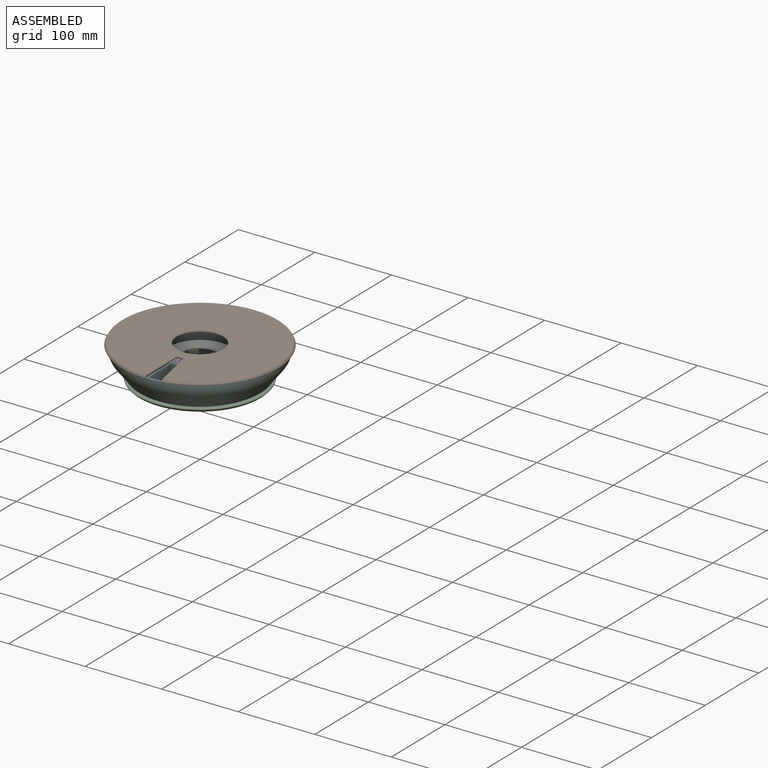
[diagram: assembled view]
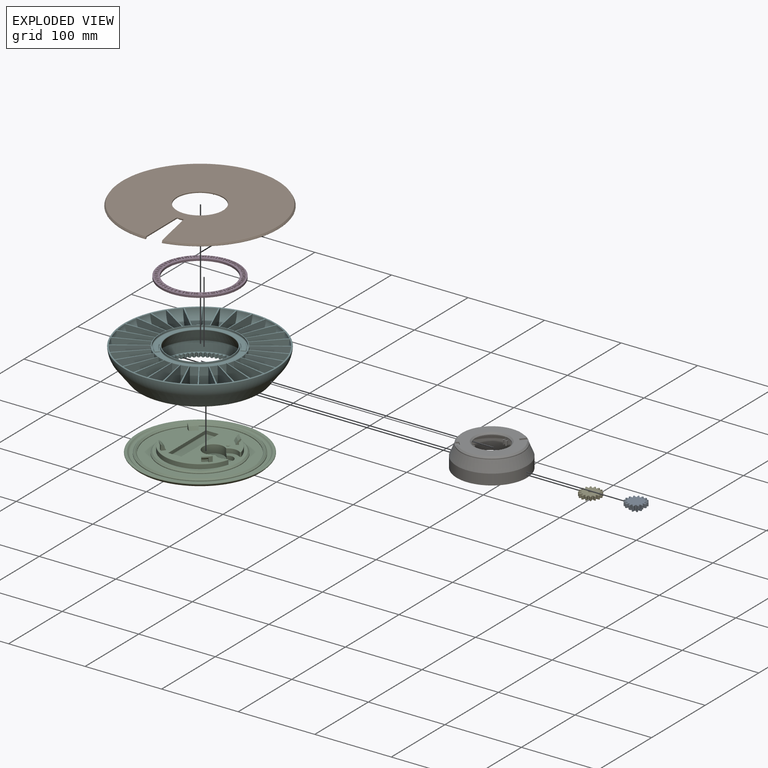
[diagram: exploded view]
GUIDED TOUR — FREECAD ASSEMBLY "smart_medication_box_v3"

This assembly has 7 components, labeled P0..P6 below (a component is one placed body or linked part; the same part can appear more than once), held together by 2 modeled joints plus 9 derived contact edges. A joint is a constraint between two components; its type names the relative motion it leaves free:
  CONTACT — a derived adjacency edge — the two components touch in the source model (clearance under 2% of the assembly's diagonal); it is measured from the geometry, not a modeled constraint,
  REVOLUTE — leaves rotation about the listed axis free (a hinge).
Axis/direction vectors are unit vectors and 'through' points are millimeter coordinates, both in the assembly's world frame.

MATES
  1. REVOLUTE [Revolute] "Joint": P4 <-> P2, axis (0.000, 0.000, 1.000) through (17.75, 0.00, 1.00) mm
  2. REVOLUTE [Revolute] "Joint001": P0 <-> P2, axis (0.000, 0.000, -1.000) through (36.00, 0.00, 1.00) mm
  3. CONTACT "contact_0_4": P0 <-> P4, contact direction (-1.000, 0.000, 0.000) through (27.26, -4.80, 5.98) mm (derived from contact, not a modeled constraint)
  4. CONTACT "contact_0_5": P0 <-> P5, contact direction (-1.000, 0.000, 0.000) through (47.04, 3.34, 10.96) mm (derived from contact, not a modeled constraint)
  5. CONTACT "contact_0_6": P0 <-> P6, contact direction (-0.615, 0.000, 0.789) through (41.70, -4.07, 2.77) mm (derived from contact, not a modeled constraint)
  6. CONTACT "contact_1_3": P1 <-> P3, contact direction (0.000, 0.000, -1.000) through (2.35, -42.67, 43.36) mm (derived from contact, not a modeled constraint)
  7. CONTACT "contact_1_5": P1 <-> P5, contact direction (0.000, 0.000, -1.000) through (-7.81, 39.85, 41.32) mm (derived from contact, not a modeled constraint)
  8. CONTACT "contact_2_5": P2 <-> P5, contact direction (-0.615, 0.000, 0.789) through (-46.35, -8.06, 6.00) mm (derived from contact, not a modeled constraint)
  9. CONTACT "contact_2_6": P2 <-> P6, contact direction (-0.615, 0.000, 0.789) through (30.44, -31.66, 18.80) mm (derived from contact, not a modeled constraint)
  10. CONTACT "contact_3_5": P3 <-> P5, contact direction (0.000, 0.000, -1.000) through (27.28, -32.84, 39.94) mm (derived from contact, not a modeled constraint)
  11. CONTACT "contact_5_6": P5 <-> P6, contact direction (1.000, 0.000, 0.000) through (-45.39, 5.20, 5.56) mm (derived from contact, not a modeled constraint)

ASSEMBLY ORDER
  1. P5 — the base component [order heuristic]
  2. P0 — core [order heuristic]
  3. P3 [order verified]
  4. P6 — core [order heuristic]
  5. P4 — core [order heuristic]
  6. P2 — core [order heuristic]
  7. P1 [order verified]
(P3 verified with a relaxed clearance tolerance: the source model stores slight part interference there.)
Order-tag legend:
  [order verified] — this step's position reverses a verified removal order: the component was checked to insert without passing through the ones already placed.
  [order heuristic] — the first 5 components form the assembly's core: parts whose collision-free extraction could not be verified, listed in mate-graph order.

Of the 7 components, 7 carry a construction recipe — the FreeCAD feature program (sketches with constraints, then the solid features that consume them) that regenerates the part from scratch, quoted from this document or from the linked companion document it references; the rest are supplied as boundary geometry only. The tour below walks the components in assembly order: each is shown spotlighted twice — in the assembled view, then in the exploded view, where a leader line traces a displaced component back to its assembled socket (components that stay in place when exploded have no leader line; saturated green if recipe-attached, orange if geometry-only; every other component desaturated gray) — followed by its recipe or geometry summary and the mates that hold it.
NOTE — document 2 of 2 of this assembly tour. The two overview renders and the header above are repeated from document 1; the component sections below continue where the previous document stopped.
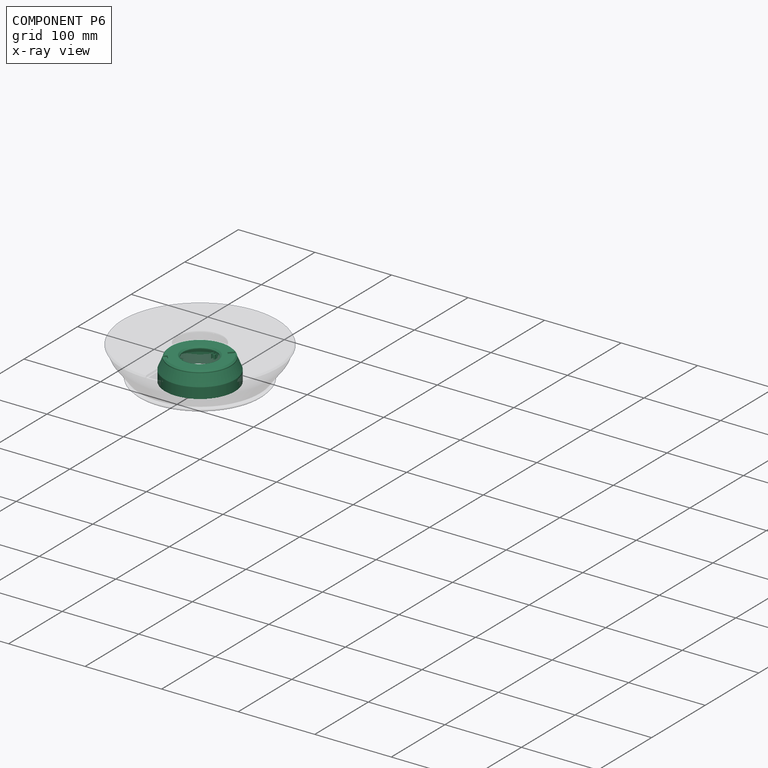
[diagram: component P6 — x-ray view]
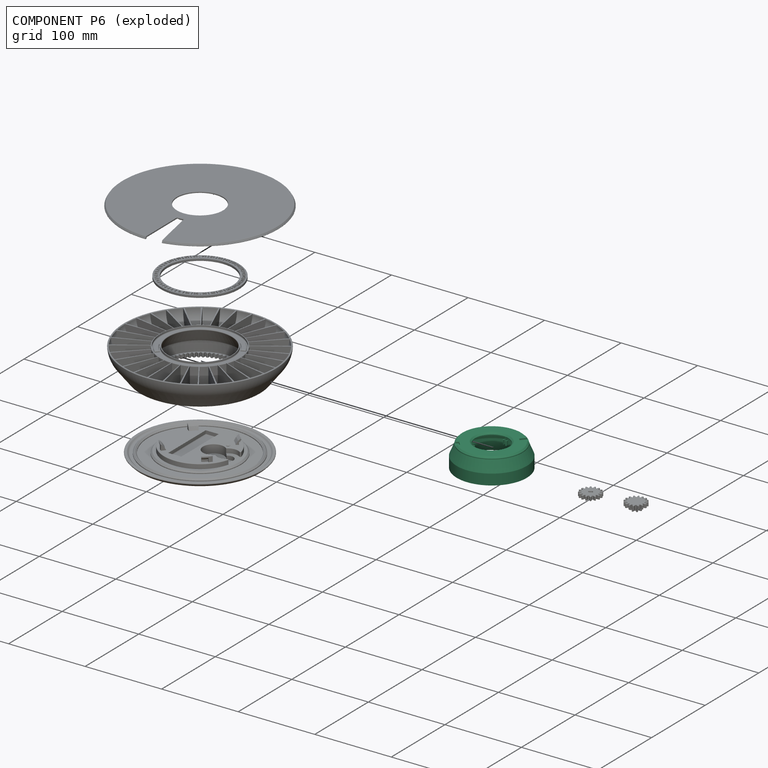
[diagram: component P6 — exploded]
COMPONENT P6 — recipe-attached ("upper_cover_display", modeled in this document).
Held by: resting contact with P0 (derived edge); resting contact with P2 (derived edge); resting contact with P5 (derived edge).
Construction recipe (the document's own serialized feature program — sketch geometry with constraints, then the solid features built on it; lengths are millimeters unless a unit is written):

FEATURE [Sketcher::SketchObject] Sketch012
  ArcFitTolerance = 1e-06
  AttacherType = Attacher::AttachEngine3D
  AttachmentSupport = -> [XY_Plane017]
  FullyConstrained = true
  MakeInternals = false
  MapMode = 5
  expr: Constraints[0] = 43
  expr: Constraints[2] = 80
  sketch-geometry (3):
    g0: Circle CenterX=0 CenterY=0 CenterZ=0 NormalX=0 NormalY=0 NormalZ=1 AngleXU=0 Radius=21.5
    g1: Circle CenterX=0 CenterY=0 CenterZ=0 NormalX=0 NormalY=0 NormalZ=1 AngleXU=0 Radius=40
    g2: Circle CenterX=0 CenterY=0 CenterZ=0 NormalX=0 NormalY=0 NormalZ=1 AngleXU=0 Radius=38.5
  constraints (6):
    c: Diameter(g0) = 43
    c: Coincident(g0,g-1)
    c: Diameter(g1) = 80
    c: Coincident(g1,g0)
    c: Coincident(g2,g0)
    c: Diameter(g2) = 77
FEATURE [PartDesign::Pad] Pad005
  Direction = (0,0,1)
  Length = 3
  Length2 = 10
  Profile = -> Sketch012 [Edge2,Edge1]
  ReferenceAxis = -> Sketch012 [N_Axis]
  Refine = true
  Suppressed = false
  Type = 0
  expr: Length = 3
FEATURE [Sketcher::SketchObject] Sketch017
  ArcFitTolerance = 1e-06
  FullyConstrained = true
  MakeInternals = false
  MapMode = 5
  Placement = pos=(40,0,0) rot=(1,0,0;1.5708rad)
  expr: Constraints[3] = 14
  expr: Constraints[4] = 28
  sketch-geometry (6):
    g0: LineSegment StartX=5.79 StartY=-28 StartZ=0 EndX=5.79 EndY=-14 EndZ=0
    g1: LineSegment StartX=5.79 StartY=-14 StartZ=0 EndX=0 EndY=0 EndZ=0
    g2: LineSegment StartX=0 StartY=0 StartZ=0 EndX=-1.5 EndY=0 EndZ=0
    g3: LineSegment StartX=-1.5 StartY=0 StartZ=0 EndX=4.29 EndY=-14 EndZ=0
    g4: LineSegment StartX=4.29 StartY=-14 StartZ=0 EndX=4.29 EndY=-28 EndZ=0
    g5: LineSegment StartX=4.29 StartY=-28 StartZ=0 EndX=5.79 EndY=-28 EndZ=0
  constraints (17):
    c: Vertical(g0)
    c: Coincident(g1,g0)
    c: Coincident(g1,g-1)
    c: DistanceY(g0,g0) = 14
    c: DistanceY(g0,g1) = 28
    c: Coincident(g2,g1)
    c: PointOnObject(g2,g-1)
    c: Coincident(g2,g3)
    c: Coincident(g3,g4)
    c: Vertical(g4)
    c: Coincident(g4,g5)
    c: Coincident(g5,g0)
    c: Perpendicular(g4,g5)
    c: Equal(g3,g1)
    c: Parallel(g3,g1)
    c: DistanceX(g5,g5) = 1.5
    c: Distance(g-2,g0) = 5.79
FEATURE [PartDesign::Revolution] Revolution003
  Angle = 360
  Angle2 = 60
  Axis = (1e-16,1e-16,1)
  Base = (0,0,0)
  BaseFeature = -> Pad005
  Profile = -> Sketch017
  ReferenceAxis = -> Z_Axis017
  Refine = true
  Reversed = true
  Suppressed = false
  Type = 0
FEATURE [PartDesign::Chamfer] Chamfer
  Angle = 45
  Base = -> Revolution003 [Edge13,Edge10]
  BaseFeature = -> Revolution003
  ChamferType = 0
  FlipDirection = false
  Refine = true
  Size = 2
  Size2 = 1
  SupportTransform = false
  Suppressed = false
  UseAllEdges = false
FEATURE [PartDesign::Plane] DatumPlane
  AttachmentSupport = -> [Chamfer]
  Length = 105.439
  MapMode = 7
  Placement = pos=(44.29,-6.2e-15,-28) rot=(0,0.707107,0.707107;3.14159rad)
  ResizeMode = 0
  Width = 66.9285
FEATURE [Sketcher::SketchObject] Sketch018
  ArcFitTolerance = 1e-06
  AttachmentSupport = -> [DatumPlane]
  FullyConstrained = true
  MakeInternals = false
  MapMode = 5
  Placement = pos=(44.29,-6.2e-15,-28) rot=(0,0.707107,0.707107;3.14159rad)
  sketch-geometry (4):
    g0: LineSegment StartX=0 StartY=0 StartZ=0 EndX=0 EndY=5.12132 EndZ=0
    g1: LineSegment StartX=0 StartY=5.12132 StartZ=0 EndX=2.12132 EndY=3 EndZ=0
    g2: LineSegment StartX=2.12132 StartY=3 StartZ=0 EndX=2.12132 EndY=0 EndZ=0
    g3: LineSegment StartX=2.12132 StartY=0 StartZ=0 EndX=0 EndY=0 EndZ=0
  constraints (11):
    c: Coincident(g-1,g0)
    c: Vertical(g0)
    c: Coincident(g0,g1)
    c: Coincident(g1,g2)
    c: PointOnObject(g2,g-1)
    c: Vertical(g2)
    c: Coincident(g2,g3)
    c: Coincident(g3,g0)
    c: Angle(g2,g1) = 0.785398
    c: Equal(g2,g1)
    c: DistanceY(g2,g2) = 3
FEATURE [PartDesign::Revolution] Revolution004
  Angle = 9
  Angle2 = 60
  Axis = (1e-16,1e-16,1)
  Base = (0,0,0)
  BaseFeature = -> Chamfer
  Profile = -> Sketch018
  ReferenceAxis = -> Z_Axis017
  Refine = true
  Suppressed = false
  Type = 0
  expr: Angle = 9
FEATURE [PartDesign::PolarPattern] PolarPattern003
  Angle = 360
  Axis = -> Z_Axis017
  BaseFeature = -> Revolution004
  Mode = 0
  Occurrences = 4
  Offset = 120
  Originals = -> [Revolution004]
  Refine = true
  Suppressed = false
  TransformMode = 0
FEATURE [PartDesign::Fillet] Fillet014
  Base = -> PolarPattern003 [Face21,Face7,Face23,Face22,Edge66,Edge9,Edge7]
  BaseFeature = -> PolarPattern003
  Radius = 0.5
  Refine = true
  SupportTransform = false
  Suppressed = false
  UseAllEdges = false
  expr: Radius = 0.5
FEATURE [Sketcher::SketchObject] Sketch029
  ArcFitTolerance = 1e-06
  AttachmentSupport = -> [Fillet014]
  ExternalGeometry = -> [Fillet014]
  FullyConstrained = true
  MakeInternals = false
  MapMode = 5
  Placement = pos=(0,0,3) rot=(0,0,1;0rad)
  expr: Constraints[23] = 10
  expr: Constraints[25] = 360 / 32
  expr: Constraints[7] = 360 / 32
  sketch-geometry (9):
    g0: LineSegment [constr] StartX=0 StartY=0 StartZ=0 EndX=63.8908 EndY=-48.1452 EndZ=0
    g1: ArcOfCircle CenterX=1.1e-14 CenterY=0 CenterZ=0 NormalX=0 NormalY=0 NormalZ=1 AngleXU=0 Radius=40 StartAngle=5.53924 EndAngle=5.73559
    g2: ArcOfCircle CenterX=0 CenterY=8.4e-15 CenterZ=0 NormalX=0 NormalY=0 NormalZ=1 AngleXU=0 Radius=30 StartAngle=5.53924 EndAngle=5.73559
    g3: LineSegment StartX=25.6133 StartY=-15.6191 StartZ=0 EndX=34.1511 EndY=-20.8255 EndZ=0
    g4: LineSegment StartX=22.0741 StartY=-20.3159 StartZ=0 EndX=29.4321 EndY=-27.0879 EndZ=0
    g5: ArcOfCircle CenterX=0 CenterY=9.2e-15 CenterZ=0 NormalX=0 NormalY=0 NormalZ=1 AngleXU=0 Radius=40 StartAngle=2.39765 EndAngle=2.594
    g6: ArcOfCircle CenterX=0 CenterY=-1.16e-14 CenterZ=0 NormalX=0 NormalY=0 NormalZ=1 AngleXU=0 Radius=35 StartAngle=2.39765 EndAngle=2.594
    g7: LineSegment StartX=-29.8822 StartY=18.2223 StartZ=0 EndX=-34.1511 EndY=20.8255 EndZ=0
    g8: LineSegment StartX=-25.7531 StartY=23.7019 StartZ=0 EndX=-29.4321 EndY=27.0879 EndZ=0
  constraints (28):
    c: PointOnObject(g0,g-1)
    c: PointOnObject(g0,g-2)
    c: Distance(g0,g0) = 80
    c: Angle(g0,g-1) = 0.645772
    c: Symmetric(g1,g1,g0)
    c: PointOnObject(g1,g-1)
    c: PointOnObject(g1,g-4)
    c: Angle(g1) = 0.19635
    c: Symmetric(g2,g2,g0)
    c: PointOnObject(g2,g-2)
    c: Angle(g2) = 0.19635
    c: Coincident(g3,g2)
    c: Coincident(g3,g1)
    c: Coincident(g4,g2)
    c: Coincident(g4,g1)
    c: Coincident(g7,g6)
    c: Coincident(g7,g5)
    c: Coincident(g8,g6)
    c: Coincident(g8,g5)
    c: Symmetric(g6,g6,g0)
    c: Symmetric(g5,g5,g0)
    c: PointOnObject(g1,g8)
    c: PointOnObject(g5,g-4)
    c: Distance(g3,g3) = 10
    c: Distance(g7,g7) = 5
    c: Angle(g6) = 0.19635
    c: PointOnObject(g6,g-2)
    c: PointOnObject(g5,g-2)
FEATURE [PartDesign::Pocket] Pocket
  BaseFeature = -> Fillet014
  Direction = (0,0,-1)
  Length = 2
  Length2 = 5
  Profile = -> Sketch029
  ReferenceAxis = -> Sketch029 [N_Axis]
  Refine = true
  Suppressed = false
  Type = 0
  expr: Length = 2
FEATURE [PartDesign::Fillet] Fillet017
  Base = -> Pocket [Edge25,Edge46,Edge19,Edge31,Edge48,Edge37]
  BaseFeature = -> Pocket
  Radius = 0.2
  Refine = true
  SupportTransform = false
  Suppressed = false
  UseAllEdges = false
  expr: Radius = 0.2
FEATURE [PartDesign::Plane] DatumPlane001
  AttachmentSupport = -> [Fillet017]
  Length = 105.439
  MapMode = 7
  Placement = pos=(21.5,0,0) rot=(1,0,0;1.5708rad)
  ResizeMode = 0
  Width = 66.9285
FEATURE [Sketcher::SketchObject] Sketch031
  ArcFitTolerance = 1e-06
  AttachmentSupport = -> [DatumPlane001]
  FullyConstrained = true
  MakeInternals = false
  MapMode = 5
  Placement = pos=(21.5,0,0) rot=(1,0,0;1.5708rad)
  expr: Constraints[9] = 2 + 3.5 + 2.5
  sketch-geometry (4):
    g0: LineSegment StartX=6.1188 StartY=0 StartZ=0 EndX=0 EndY=0 EndZ=0
    g1: LineSegment StartX=0 StartY=0 StartZ=0 EndX=0 EndY=-8 EndZ=0
    g2: LineSegment StartX=6.1188 StartY=0 StartZ=0 EndX=1.5 EndY=-8 EndZ=0
    g3: LineSegment StartX=1.5 StartY=-8 StartZ=0 EndX=0 EndY=-8 EndZ=0
  constraints (11):
    c: PointOnObject(g0,g-1)
    c: PointOnObject(g1,g-2)
    c: Coincident(g0,g-1)
    c: Coincident(g1,g0)
    c: Coincident(g0,g2)
    c: Coincident(g2,g3)
    c: Coincident(g3,g1)
    c: Parallel(g3,g0)
    c: Angle(g0,g2) = 1.0472
    c: DistanceY(g1,g1) = 8
    c: DistanceX(g3,g3) = 1.5
FEATURE [PartDesign::Revolution] Revolution008
  Angle = 222.625
  Angle2 = 148.625
  Axis = (1e-16,1e-16,1)
  Base = (0,0,0)
  BaseFeature = -> Fillet017
  Profile = -> Sketch031
  ReferenceAxis = -> Z_Axis017
  Refine = true
  Reversed = true
  Suppressed = false
  Type = 4
  expr: Angle = 180 + 37 + 11.25 / 2
  expr: Angle2 = 180 - (37 - 11.25 / 2)
FEATURE [Sketcher::SketchObject] Sketch033
  ArcFitTolerance = 1e-06
  FullyConstrained = false
  MakeInternals = false
  MapMode = 5
  Placement = pos=(-9e-16,-9e-16,-8) rot=(1,0,0;3.14159rad)
  expr: Constraints[9] = 1.85
  sketch-geometry (6):
    g0: ArcOfCircle CenterX=-15.8928 CenterY=-11.9761 CenterZ=0 NormalX=0 NormalY=0 NormalZ=1 AngleXU=0 Radius=2.75515 StartAngle=1.59748 EndAngle=2.90258
    g1: ArcOfCircle CenterX=-15.8928 CenterY=-11.9761 CenterZ=0 NormalX=0 NormalY=0 NormalZ=1 AngleXU=0 Radius=2.75515 StartAngle=4.67215 EndAngle=6.01294
    g2: ArcOfCircle CenterX=-15.8928 CenterY=-11.9761 CenterZ=0 NormalX=0 NormalY=0 NormalZ=1 AngleXU=0 Radius=1.85 StartAngle=1.59748 EndAngle=6.01294
    g3: ArcOfCircle CenterX=-15.9543 CenterY=-9.67436 CenterZ=0 NormalX=0 NormalY=0 NormalZ=1 AngleXU=0 Radius=0.452574 StartAngle=4.73908 EndAngle=7.88067
    g4: ArcOfCircle CenterX=-13.6738 CenterY=-12.5908 CenterZ=0 NormalX=0 NormalY=0 NormalZ=1 AngleXU=0 Radius=0.452574 StartAngle=6.01294 EndAngle=9.15453
    g5: ArcOfCircle CenterX=-10.7952 CenterY=-8.1348 CenterZ=0 NormalX=0 NormalY=0 NormalZ=1 AngleXU=0 Radius=8.40308 StartAngle=3.53086 EndAngle=4.04387
  constraints (13):
    c: Coincident(g0,g-6)
    c: Coincident(g1,g0)
    c: Coincident(g1,g-5)
    c: Coincident(g2,g0)
    c: Tangent(g3,g2) = 1.5708
    c: Tangent(g3,g0) = -1.5708
    c: Tangent(g4,g1) = -1.5708
    c: Tangent(g4,g2) = 1.5708
    c: Equal(g4,g3)
    c: Radius(g2) = 1.85
    c: Tangent(g2,g-5)
    c: Coincident(g5,g0)
    c: Coincident(g5,g1)
FEATURE [PartDesign::Pad] Pad012
  BaseFeature = -> Revolution008
  Direction = (0,-1e-16,-1)
  Length = 6
  Length2 = 10
  Profile = -> Sketch033
  ReferenceAxis = -> Sketch033 [N_Axis]
  Refine = true
  Reversed = true
  Suppressed = false
  Type = 0
  expr: Length = 2.5 + 3.5
FEATURE [PartDesign::PolarPattern] PolarPattern007
  Angle = 360
  Axis = -> Z_Axis017
  BaseFeature = -> Pad012
  Mode = 1
  Occurrences = 2
  Offset = 144
  Originals = -> [Revolution008]
  Refine = true
  Suppressed = false
  TransformMode = 0
  expr: Offset = 144
FEATURE [PartDesign::PolarPattern] PolarPattern008
  Angle = 360
  Axis = -> Z_Axis017
  BaseFeature = -> PolarPattern007
  Mode = 1
  Occurrences = 2
  Offset = 216
  Originals = -> [Revolution008]
  Refine = true
  Suppressed = false
  TransformMode = 0
  expr: Offset = 180 + 36
FEATURE [PartDesign::PolarPattern] PolarPattern009
  Angle = 360
  Axis = -> Z_Axis017
  BaseFeature = -> PolarPattern008
  Mode = 1
  Occurrences = 2
  Offset = 144
  Originals = -> [Pad012]
  Refine = true
  Suppressed = false
  TransformMode = 0
  expr: Offset = 144
FEATURE [PartDesign::PolarPattern] PolarPattern010
  Angle = 216
  Axis = -> Z_Axis017
  BaseFeature = -> PolarPattern009
  Mode = 1
  Occurrences = 2
  Offset = 216
  Originals = -> [Pad012]
  Refine = true
  Suppressed = false
  TransformMode = 0
  expr: Angle = 216
  expr: Offset = 216
FEATURE [PartDesign::Body] Body021  label="upper_cover_display"
  AllowCompound = false
  Group = -> [Sketch012,Pad005,Sketch017,Revolution003,Chamfer,Sketch018,Revolution004,PolarPattern003,DatumPlane,Fillet014,Sketch029,Pocket,Fillet017,DatumPlane001,Sketch031,Revolution008,Sketch033,Pad012,PolarPattern007,PolarPattern008,PolarPattern009,PolarPattern010]
  Origin = -> Origin034
  Tip = -> PolarPattern010
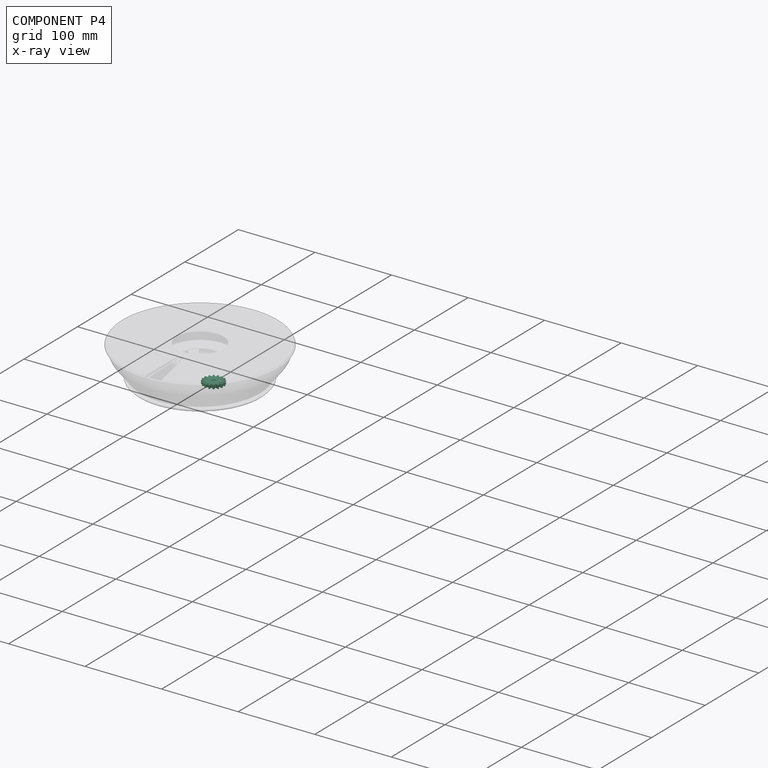
[diagram: component P4 — x-ray view]
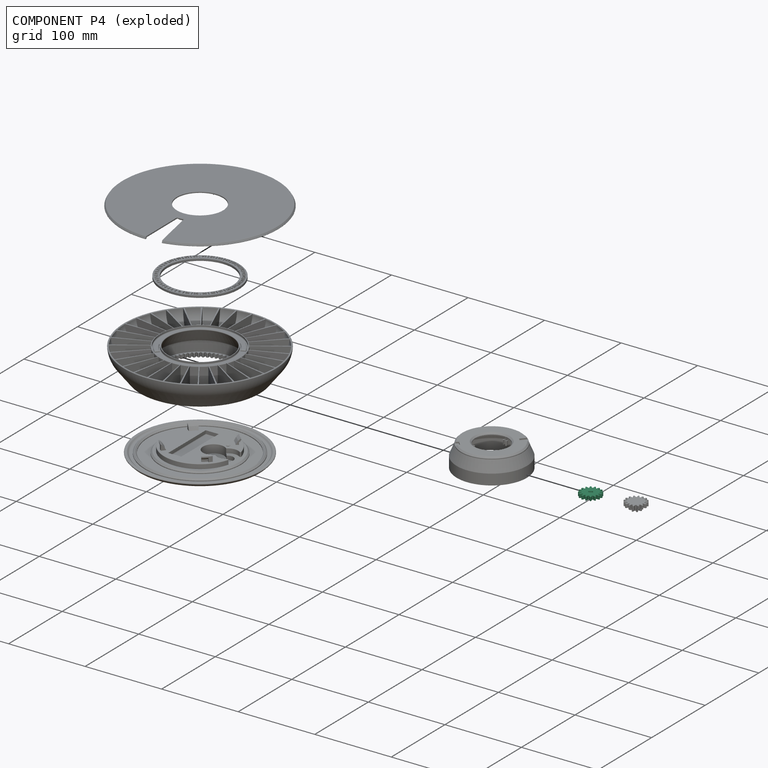
[diagram: component P4 — exploded]
COMPONENT P4 — recipe-attached ("motor_gear002", modeled in this document).
Held by: REVOLUTE mate "Joint" to P2; resting contact with P0 (derived edge).
Construction recipe (the document's own serialized feature program — sketch geometry with constraints, then the solid features built on it; lengths are millimeters unless a unit is written):

FEATURE [PartDesign::FeaturePython] InvoluteGear001  # WARN: FeaturePython — macro-defined, semantics opaque (R4)
  AttacherType = Attacher::AttachEngine3D
  Suppressed = false
  addendum_diameter = 27
  angular_backlash = 0
  axle_hole = false
  axle_holesize = 10
  backlash = 0
  clearance = 0.25
  double_helix = false
  head = 0
  head_fillet = 0
  height = 5
  helix_angle = 0
  module = 1.5
  num_teeth = 16
  numpoints = 20
  offset_hole = false
  offset_holeoffset = 10
  offset_holesize = 10
  pitch_diameter = 24
  pressure_angle = 20
  properties_from_tool = false
  reversed_backlash = false
  root_diameter = 20.25
  root_fillet = 0
  shift = 0
  simple = false
  transverse_pitch = 4.71239
  traverse_module = 1.5
  undercut = false
  version = 1.3.0
  expr: angular_backlash = backlash / pitch_diameter * 360 ° / pi
  expr: module = 1.5
  expr: num_teeth = 16
FEATURE [Sketcher::SketchObject] Sketch008
  ArcFitTolerance = 1e-06
  AttachmentSupport = -> [InvoluteGear001]
  FullyConstrained = true
  MakeInternals = false
  MapMode = 5
  Placement = pos=(0,0,5) rot=(0,0,1;0rad)
  expr: Constraints[11] = 3.1
  sketch-geometry (4):
    g0: ArcOfCircle CenterX=0 CenterY=0 CenterZ=0 NormalX=0 NormalY=0 NormalZ=1 AngleXU=0 Radius=2.5 StartAngle=2.47285 EndAngle=3.81034
    g1: ArcOfCircle CenterX=0 CenterY=0 CenterZ=0 NormalX=0 NormalY=0 NormalZ=1 AngleXU=0 Radius=2.5 StartAngle=5.61444 EndAngle=6.95193
    g2: LineSegment StartX=-1.9615 StartY=1.55 StartZ=0 EndX=1.9615 EndY=1.55 EndZ=0
    g3: LineSegment StartX=1.9615 StartY=-1.55 StartZ=0 EndX=-1.9615 EndY=-1.55 EndZ=0
  constraints (12):
    c: Coincident(g0,g-1)
    c: Coincident(g0,g1)
    c: Diameter(g0) = 5
    c: Equal(g1,g0)
    c: Coincident(g2,g0)
    c: Coincident(g2,g1)
    c: Coincident(g3,g1)
    c: Coincident(g3,g0)
    c: Parallel(g3,g2)
    c: Parallel(g-1,g2)
    c: Equal(g2,g3)
    c: Distance(g3,g2) = 3.1
FEATURE [PartDesign::Pocket] Pocket004
  BaseFeature = -> InvoluteGear001
  Direction = (0,0,-1)
  Length = 5
  Length2 = 5
  Profile = -> Sketch008
  ReferenceAxis = -> Sketch008 [N_Axis]
  Refine = true
  Suppressed = false
  Type = 0
FEATURE [PartDesign::Fillet] Fillet012
  Base = -> Pocket004 [Face5,Face4]
  BaseFeature = -> Pocket004
  Radius = 0.25
  Refine = true
  SupportTransform = false
  Suppressed = false
  UseAllEdges = false
  expr: Radius = 0.25
FEATURE [PartDesign::Body] Body005  label="motor_gear001"
  AllowCompound = false
  Group = -> [InvoluteGear001,Sketch008,Pocket004,Fillet012]
  Origin = -> Origin010
  Placement = pos=(0,0,75) rot=(0,0,1;0rad)
  Tip = -> Fillet012
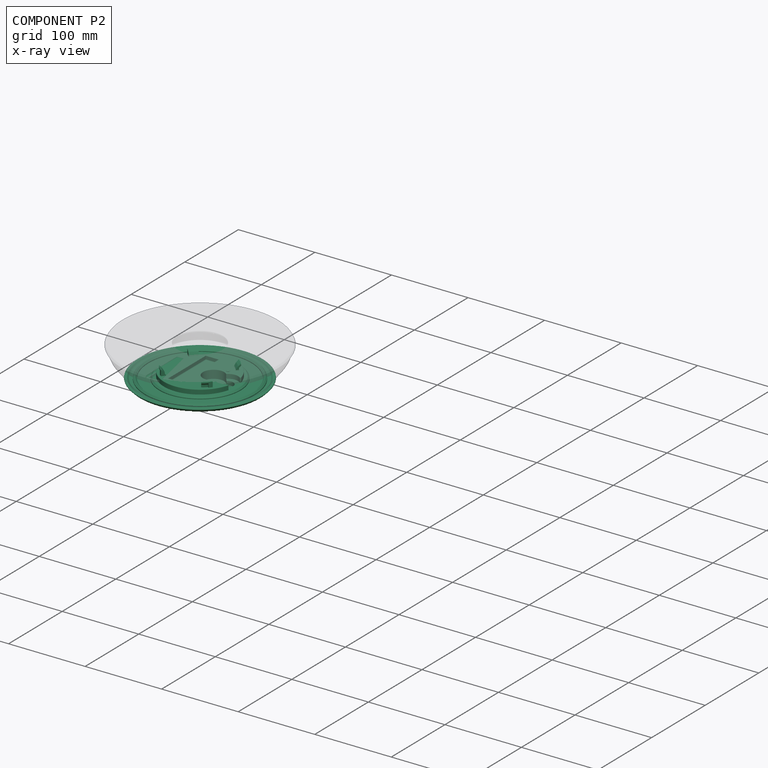
[diagram: component P2 — x-ray view]
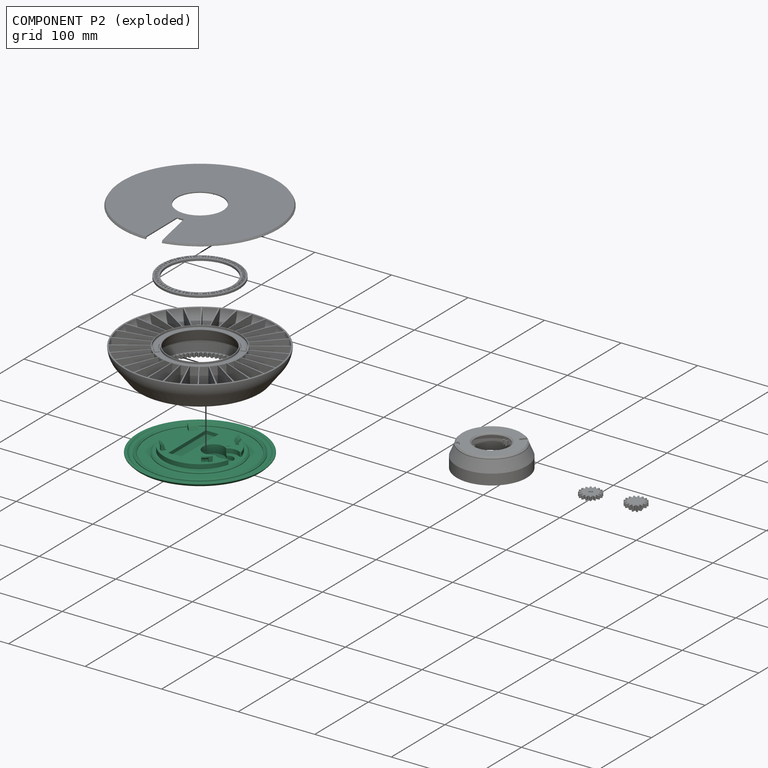
[diagram: component P2 — exploded]
COMPONENT P2 — recipe-attached ("base002", modeled in this document).
Held by: REVOLUTE mate "Joint" to P4; REVOLUTE mate "Joint001" to P0; resting contact with P5 (derived edge); resting contact with P6 (derived edge).
Construction recipe (the document's own serialized feature program — sketch geometry with constraints, then the solid features built on it; lengths are millimeters unless a unit is written):

FEATURE [Sketcher::SketchObject] Sketch003
  ArcFitTolerance = 1e-06
  AttachmentSupport = -> [Origin006]
  FullyConstrained = true
  MakeInternals = false
  expr: Constraints[0] = 53 * 2
  sketch-geometry (1):
    g0: Circle CenterX=0 CenterY=0 CenterZ=0 NormalX=0 NormalY=0 NormalZ=1 AngleXU=0 Radius=53
  constraints (2):
    c: Diameter(g0) = 106
    c: Coincident(g0,g-1)
FEATURE [PartDesign::Pad] Pad
  Direction = (0,0,1)
  Length = 6
  Length2 = 10
  Profile = -> Sketch003
  ReferenceAxis = -> Sketch003 [N_Axis]
  Refine = true
  Suppressed = false
  Type = 0
  expr: Length = 6
FEATURE [Sketcher::SketchObject] Sketch004
  ArcFitTolerance = 1e-06
  AttachmentSupport = -> [Pad]
  FullyConstrained = true
  MakeInternals = false
  MapMode = 5
  Placement = pos=(0,0,6) rot=(0,0,1;0rad)
  expr: Constraints[0] = 48 * 2 - 2
  sketch-geometry (1):
    g0: Circle CenterX=0 CenterY=0 CenterZ=0 NormalX=0 NormalY=0 NormalZ=1 AngleXU=0 Radius=47
  constraints (2):
    c: Diameter(g0) = 94
    c: Coincident(g0,g-1)
FEATURE [PartDesign::Pad] Pad001
  BaseFeature = -> Pad
  Direction = (0,0,1)
  Length = 6
  Length2 = 10
  Profile = -> Sketch004
  ReferenceAxis = -> Sketch004 [N_Axis]
  Refine = true
  Suppressed = false
  Type = 0
  expr: Length = 6
FEATURE [Sketcher::SketchObject] Sketch005
  ArcFitTolerance = 1e-06
  AttachmentSupport = -> [Pad001]
  ExternalGeometry = -> [Pad001]
  FullyConstrained = true
  MakeInternals = false
  MapMode = 5
  Placement = pos=(0,0,12) rot=(0,0,1;0rad)
  expr: Constraints[0] = 27.5
  expr: Constraints[4] = 11
  sketch-geometry (2):
    g0: Circle CenterX=36 CenterY=0 CenterZ=0 NormalX=0 NormalY=0 NormalZ=1 AngleXU=0 Radius=13.75
    g1: Circle [constr] CenterX=36 CenterY=0 CenterZ=0 NormalX=0 NormalY=0 NormalZ=1 AngleXU=0 Radius=11
  constraints (5):
    c: Diameter(g0) = 27.5
    c: Coincident(g1,g0)
    c: Tangent(g1,g-3)
    c: PointOnObject(g0,g-1)
    c: Distance(g0,g-3) = 11
FEATURE [PartDesign::Pocket] Pocket001
  BaseFeature = -> Pad001
  Direction = (0,0,-1)
  Length = 6
  Length2 = 5
  Profile = -> Sketch005
  ReferenceAxis = -> Sketch005 [N_Axis]
  Refine = true
  Suppressed = false
  Type = 0
  expr: Length = 6
FEATURE [Sketcher::SketchObject] Sketch006
  ArcFitTolerance = 1e-06
  AttachmentSupport = -> [Pocket001]
  ExternalGeometry = -> [Pocket001]
  FullyConstrained = true
  MakeInternals = false
  MapMode = 5
  Placement = pos=(0,0,6) rot=(0,0,1;0rad)
  sketch-geometry (1):
    g0: Circle CenterX=36 CenterY=0 CenterZ=0 NormalX=0 NormalY=0 NormalZ=1 AngleXU=0 Radius=7.6
  constraints (2):
    c: Diameter(g0) = 15.2
    c: Coincident(g0,g-4)
FEATURE [PartDesign::Pocket] Pocket002
  BaseFeature = -> Pocket001
  Direction = (0,0,-1)
  Length = 5
  Length2 = 5
  Profile = -> Sketch006
  ReferenceAxis = -> Sketch006 [N_Axis]
  Refine = true
  Suppressed = false
  Type = 0
FEATURE [Sketcher::SketchObject] Sketch007
  ArcFitTolerance = 1e-06
  AttachmentSupport = -> [Pocket002]
  ExternalGeometry = -> [Pocket002]
  FullyConstrained = true
  MakeInternals = false
  MapMode = 5
  Placement = pos=(0,0,12) rot=(0,0,1;0rad)
  expr: Constraints[0] = 27.5
  expr: Constraints[2] = -3.1
  sketch-geometry (1):
    g0: Circle CenterX=17.75 CenterY=0 CenterZ=0 NormalX=0 NormalY=0 NormalZ=1 AngleXU=0 Radius=13.75
  constraints (3):
    c: Diameter(g0) = 27.5
    c: PointOnObject(g0,g-1)
    c: Distance(g0,g-3) = -3.1
FEATURE [PartDesign::Pocket] Pocket003
  BaseFeature = -> Pocket002
  Direction = (0,0,-1)
  Length = 11
  Length2 = 5
  Profile = -> Sketch007
  ReferenceAxis = -> Sketch007 [N_Axis]
  Refine = true
  Suppressed = false
  Type = 0
  expr: Length = 11
FEATURE [Sketcher::SketchObject] Sketch009
  ArcFitTolerance = 1e-06
  FullyConstrained = false
  MakeInternals = false
  MapMode = 5
  Placement = pos=(53,0,0) rot=(1,0,0;1.5708rad)
  expr: Constraints[0] = 23
  sketch-geometry (13):
    g0: LineSegment StartX=0 StartY=3 StartZ=0 EndX=21.9645 EndY=3 EndZ=0
    g1: LineSegment StartX=23.7322 StartY=3.73223 StartZ=0 EndX=24.7071 EndY=4.70711 EndZ=0
    g2: LineSegment StartX=25.4142 StartY=5 StartZ=0 EndX=27.4142 EndY=5 EndZ=0
    g3: LineSegment StartX=28.1213 StartY=3.29289 StartZ=0 EndX=25.5607 EndY=0.732233 EndZ=0
    g4: LineSegment StartX=0 StartY=0 StartZ=0 EndX=23.7929 EndY=0 EndZ=0
    g5: ArcOfCircle CenterX=27.4142 CenterY=4 CenterZ=0 NormalX=0 NormalY=0 NormalZ=1 AngleXU=0 Radius=1 StartAngle=5.49779 EndAngle=7.85398
    g6: ArcOfCircle CenterX=25.4142 CenterY=4 CenterZ=0 NormalX=0 NormalY=0 NormalZ=1 AngleXU=0 Radius=1 StartAngle=1.5708 EndAngle=2.35619
    g7: GeomPoint [constr] X=25 Y=5 Z=0
    g8: ArcOfCircle CenterX=21.9645 CenterY=5.5 CenterZ=0 NormalX=0 NormalY=0 NormalZ=1 AngleXU=0 Radius=2.5 StartAngle=4.71239 EndAngle=5.49779
    g9: GeomPoint [constr] X=23 Y=3 Z=0
    g10: ArcOfCircle CenterX=23.7929 CenterY=2.5 CenterZ=0 NormalX=0 NormalY=0 NormalZ=1 AngleXU=0 Radius=2.5 StartAngle=4.71239 EndAngle=5.49779
    g11: GeomPoint [constr] X=24.8284 Y=0 Z=0
    g12: LineSegment StartX=0 StartY=0 StartZ=0 EndX=0 EndY=3 EndZ=0
  constraints (29):
    c: DistanceX(g0,g9) = 23
    c: PointOnObject(g11,g-1)
    c: Parallel(g1,g3)
    c: Parallel(g0,g4)
    c: Parallel(g2,g0)
    c: Tangent(g2,g5) = 1.5708
    c: PointOnObject(g7,g1)
    c: PointOnObject(g7,g2)
    c: Tangent(g1,g6) = 1.5708
    c: Tangent(g2,g6) = 1.5708
    c: PointOnObject(g9,g1)
    c: PointOnObject(g9,g0)
    c: Tangent(g1,g8) = -1.5708
    c: Tangent(g0,g8) = -1.5708
    c: PointOnObject(g11,g3)
    c: PointOnObject(g11,g4)
    c: Tangent(g3,g10) = 1.5708
    c: Tangent(g4,g10) = -1.5708
    c: Equal(g5,g6)
    c: Radius(g6) = 1
    c: Equal(g8,g10)
    c: Radius(g10) = 2.5
    c: Tangent(g3,g5) = 1.5708
    c: Angle(g-1,g3) = 0.785398
    c: DistanceX(g2,g2) = 2
    c: Coincident(g12,g4)
    c: Coincident(g12,g0)
    c: Vertical(g12)
    c: DistanceY(g12,g12) = 3
FEATURE [PartDesign::Revolution] Revolution
  Angle = 360
  Angle2 = 60
  Axis = (1e-16,1e-16,1)
  Base = (0,0,0)
  BaseFeature = -> Pocket003
  Profile = -> Sketch009
  ReferenceAxis = -> Z_Axis003
  Refine = true
  Reversed = true
  Suppressed = false
  Type = 0
FEATURE [PartDesign::Fillet] Fillet
  Base = -> Revolution [Edge24,Edge22,Edge18,Edge25,Edge20,Edge16]
  BaseFeature = -> Revolution
  Radius = 1
  Refine = true
  SupportTransform = false
  Suppressed = false
  UseAllEdges = false
FEATURE [Sketcher::SketchObject] Sketch019
  ArcFitTolerance = 1e-06
  AttachmentSupport = -> [Fillet]
  FullyConstrained = true
  MakeInternals = false
  MapMode = 5
  Placement = pos=(0,0,12) rot=(0,0,1;0rad)
  sketch-geometry (1):
    g0: Circle CenterX=0 CenterY=0 CenterZ=0 NormalX=0 NormalY=0 NormalZ=1 AngleXU=0 Radius=44
  constraints (2):
    c: Diameter(g0) = 88
    c: Coincident(g0,g-1)
FEATURE [Sketcher::SketchObject] Sketch020
  ArcFitTolerance = 1e-06
  FullyConstrained = true
  MakeInternals = false
  MapMode = 5
  Placement = pos=(44,0,12) rot=(1,0,0;1.5708rad)
  sketch-geometry (9):
    g0: LineSegment StartX=-2.19203 StartY=0 StartZ=0 EndX=-2.19203 EndY=3.1 EndZ=0
    g1: LineSegment StartX=-2.19203 StartY=3.1 StartZ=0 EndX=0 EndY=5.29203 EndZ=0
    g2: LineSegment StartX=0 StartY=5.29203 StartZ=0 EndX=0 EndY=7.79203 EndZ=0
    g3: LineSegment StartX=-5.9535 StartY=0 StartZ=0 EndX=-2.19203 EndY=0 EndZ=0
    g4: LineSegment StartX=0 StartY=7.79203 StartZ=0 EndX=-3.44203 EndY=4.35 EndZ=0
    g5: LineSegment StartX=-3.44203 StartY=4.35 StartZ=0 EndX=-5.9535 EndY=0 EndZ=0
    g6: LineSegment [constr] StartX=-3.44203 StartY=4.35 StartZ=0 EndX=-2.19203 EndY=3.1 EndZ=0
    g7: LineSegment StartX=-2.19203 StartY=0 StartZ=0 EndX=0 EndY=0 EndZ=0
    g8: LineSegment StartX=0 StartY=0 StartZ=0 EndX=0 EndY=5.29203 EndZ=0
  constraints (24):
    c: PointOnObject(g0,g-1)
    c: Vertical(g0)
    c: Coincident(g0,g1)
    c: PointOnObject(g1,g-2)
    c: Coincident(g1,g2)
    c: Coincident(g3,g0)
    c: PointOnObject(g3,g-1)
    c: PointOnObject(g2,g-2)
    c: Angle(g1,g0) = 0.785398
    c: DistanceY(g0,g0) = 3.1
    c: Equal(g1,g0)
    c: DistanceY(g2,g2) = 2.5
    c: Coincident(g2,g4)
    c: Coincident(g4,g5)
    c: Coincident(g3,g5)
    c: Angle(g3,g5) = 1.0472
    c: Parallel(g4,g1)
    c: Coincident(g6,g4)
    c: Coincident(g6,g0)
    c: Perpendicular(g4,g6)
    c: Coincident(g7,g0)
    c: Coincident(g7,g-1)
    c: Coincident(g8,g7)
    c: Coincident(g8,g1)
FEATURE [PartDesign::Revolution] Revolution005
  Angle = 323
  Angle2 = 47
  Axis = (1e-16,1e-16,1)
  Base = (0,0,0)
  BaseFeature = -> Fillet
  Profile = -> Sketch020 [Edge4,Edge5,Edge2,Edge1,Edge3,Edge6]
  ReferenceAxis = -> Z_Axis003
  Refine = true
  Reversed = true
  Suppressed = false
  Type = 4
  expr: Angle = 323
  expr: Angle2 = 47
FEATURE [PartDesign::Revolution] Revolution006
  Angle = 313
  Angle2 = 53
  Axis = (1e-16,1e-16,1)
  Base = (0,0,0)
  BaseFeature = -> Revolution005
  Profile = -> Sketch020 [Edge8,Edge3,Edge4,Edge5,Edge6,Edge7]
  ReferenceAxis = -> Z_Axis003
  Refine = true
  Reversed = true
  Suppressed = false
  Type = 4
  expr: Angle = 313
  expr: Angle2 = 53
FEATURE [PartDesign::PolarPattern] PolarPattern004
  Angle = 360
  Axis = -> Z_Axis003
  BaseFeature = -> Revolution006
  Mode = 0
  Occurrences = 4
  Offset = 120
  Originals = -> [Revolution005,Revolution006]
  Refine = true
  Suppressed = false
  TransformMode = 0
  expr: Occurrences = 4
FEATURE [Sketcher::SketchObject] Sketch027
  ArcFitTolerance = 1e-06
  FullyConstrained = true
  MakeInternals = false
  MapMode = 5
  Placement = pos=(0,0,12) rot=(0,0,1;0rad)
  expr: Constraints[4] = 8
  sketch-geometry (2):
    g0: Circle CenterX=24.9 CenterY=17 CenterZ=0 NormalX=0 NormalY=0 NormalZ=1 AngleXU=0 Radius=1.375
    g1: Circle CenterX=24.9 CenterY=-17 CenterZ=0 NormalX=0 NormalY=0 NormalZ=1 AngleXU=0 Radius=1.375
  constraints (5):
    c: Symmetric(g1,g0,g-1)
    c: Equal(g0,g1)
    c: Diameter(g0) = 2.75
    c: Distance(g0,g-1) = 17
    c: DistanceX(g-3,g1) = 8
FEATURE [PartDesign::Pocket] Pocket007
  BaseFeature = -> PolarPattern004
  Direction = (0,0,-1)
  Length = 5
  Length2 = 5
  Profile = -> Sketch027
  ReferenceAxis = -> Sketch027 [N_Axis]
  Refine = true
  Suppressed = false
  Type = 1
FEATURE [PartDesign::Chamfer] Chamfer002
  Angle = 45
  Base = -> Pocket007 [Edge137,Edge117,Edge39,Edge47]
  BaseFeature = -> Pocket007
  ChamferType = 0
  FlipDirection = false
  Refine = true
  Size = 1
  Size2 = 1
  SupportTransform = false
  Suppressed = false
  UseAllEdges = false
  expr: Size = 1
FEATURE [Sketcher::SketchObject] Sketch028
  ArcFitTolerance = 1e-06
  AttachmentSupport = -> [Chamfer002]
  FullyConstrained = true
  MakeInternals = false
  MapMode = 5
  Placement = pos=(0,0,12) rot=(0,0,1;0rad)
  expr: Constraints[1] = 70
  expr: Constraints[9] = 17
  sketch-geometry (4):
    g0: LineSegment StartX=0 StartY=35 StartZ=0 EndX=4e-16 EndY=-35 EndZ=0
    g1: LineSegment StartX=4e-16 StartY=-35 StartZ=0 EndX=-17 EndY=-35 EndZ=0
    g2: LineSegment StartX=-17 StartY=-35 StartZ=0 EndX=-17 EndY=35 EndZ=0
    g3: LineSegment StartX=-17 StartY=35 StartZ=0 EndX=0 EndY=35 EndZ=0
  constraints (11):
    c: Symmetric(g0,g0,g-1)
    c: DistanceY(g0,g0) = 70
    c: Coincident(g0,g1)
    c: Coincident(g1,g2)
    c: Vertical(g2)
    c: Coincident(g2,g3)
    c: Coincident(g3,g0)
    c: Parallel(g3,g1)
    c: Perpendicular(g2,g1)
    c: DistanceX(g1,g1) = 17
    c: PointOnObject(g0,g-2)
FEATURE [PartDesign::Pocket] Pocket008
  BaseFeature = -> Chamfer002
  Direction = (0,0,-1)
  Length = 5
  Length2 = 5
  Profile = -> Sketch028
  ReferenceAxis = -> Sketch028 [N_Axis]
  Refine = true
  Suppressed = false
  Type = 0
  expr: Length = 5
FEATURE [Sketcher::SketchObject] Sketch
  ArcFitTolerance = 1e-06
  AttachmentSupport = -> [Pocket008]
  ExternalGeometry = -> [Pocket008]
  FullyConstrained = true
  MakeInternals = false
  MapMode = 5
  Placement = pos=(3e-16,3e-16,3) rot=(0,0,1;0rad)
  sketch-geometry (2):
    g0: Circle CenterX=0 CenterY=0 CenterZ=0 NormalX=0 NormalY=0 NormalZ=1 AngleXU=0 Radius=67.4645
    g1: Circle CenterX=0 CenterY=0 CenterZ=0 NormalX=0 NormalY=0 NormalZ=1 AngleXU=0 Radius=71.9645
  constraints (4):
    c: Coincident(g0,g-1)
    c: Coincident(g1,g0)
    c: Distance(g0,g1) = 4.5
    c: Distance(g-4,g1) = 3
FEATURE [PartDesign::Pad] Pad010
  BaseFeature = -> Pocket008
  Direction = (0,0,1)
  Length = 3
  Length2 = 10
  Profile = -> Sketch
  ReferenceAxis = -> Sketch [N_Axis]
  Refine = true
  Suppressed = false
  Type = 0
  expr: Length = 3
FEATURE [PartDesign::Chamfer] Chamfer003
  Angle = 45
  Base = -> Pad010 [Edge153,Edge177,Edge180]
  BaseFeature = -> Pad010
  ChamferType = 0
  FlipDirection = false
  Refine = true
  Size = 2
  Size2 = 1
  SupportTransform = false
  Suppressed = false
  UseAllEdges = false
FEATURE [PartDesign::Fillet] Fillet018
  Base = -> Chamfer003 [Face50]
  BaseFeature = -> Chamfer003
  Radius = 0.4
  Refine = true
  SupportTransform = false
  Suppressed = false
  UseAllEdges = false
  expr: Radius = 0.4
FEATURE [PartDesign::PolarPattern] PolarPattern006
  Angle = 360
  Axis = -> Z_Axis003
  BaseFeature = -> Fillet018
  Mode = 0
  Occurrences = 4
  Offset = 120
  Originals = -> [Fillet018]
  Refine = true
  Suppressed = false
  TransformMode = 0
FEATURE [PartDesign::Fillet] Fillet019
  Base = -> PolarPattern006 [Face42]
  BaseFeature = -> PolarPattern006
  Radius = 1
  Refine = true
  SupportTransform = false
  Suppressed = false
  UseAllEdges = false
FEATURE [PartDesign::Fillet] Fillet020
  Base = -> Fillet019 [Edge17]
  BaseFeature = -> Fillet019
  Radius = 0.4
  Refine = true
  SupportTransform = false
  Suppressed = false
  UseAllEdges = false
  expr: Radius = 0.4
FEATURE [Sketcher::SketchObject] Sketch034
  ArcFitTolerance = 1e-06
  AttachmentSupport = -> [Fillet020]
  ExternalGeometry = -> [Fillet020]
  FullyConstrained = true
  MakeInternals = false
  MapMode = 5
  Placement = pos=(0,0,1) rot=(0,0,1;0rad)
  expr: Constraints[1] = 5 mm * 0.97
  sketch-geometry (1):
    g0: Circle CenterX=36 CenterY=0 CenterZ=0 NormalX=0 NormalY=0 NormalZ=1 AngleXU=0 Radius=2.425
  constraints (3):
    c: Radius(g-3) = 7.6
    c: Diameter(g0) = 4.85
    c: Coincident(g0,g-3)
FEATURE [PartDesign::Pad] Pad013
  BaseFeature = -> Fillet020
  Direction = (0,0,1)
  Length = 2.5
  Length2 = 10
  Profile = -> Sketch034
  ReferenceAxis = -> Sketch034 [N_Axis]
  Refine = true
  Suppressed = false
  Type = 0
  expr: Length = 2.5
FEATURE [PartDesign::Fillet] Fillet021
  Base = -> Pad013 [Face121]
  BaseFeature = -> Pad013
  Radius = 0.3
  Refine = true
  SupportTransform = false
  Suppressed = false
  UseAllEdges = false
  expr: Radius = 0.3
FEATURE [PartDesign::Body] Body003  label="base001"
  AllowCompound = false
  Group = -> [Sketch003,Pad,Sketch004,Pad001,Sketch005,Pocket001,Sketch006,Pocket002,Sketch007,Pocket003,Sketch009,Revolution,Fillet,Sketch019,Sketch020,Revolution005,Revolution006,PolarPattern004,Sketch027,Pocket007,Chamfer002,Sketch028,Pocket008,Sketch,Pad010,Chamfer003,Fillet018,PolarPattern006,Fillet019,Fillet020,Sketch034,Pad013,Fillet021]
  Origin = -> Origin006
  Tip = -> Fillet021
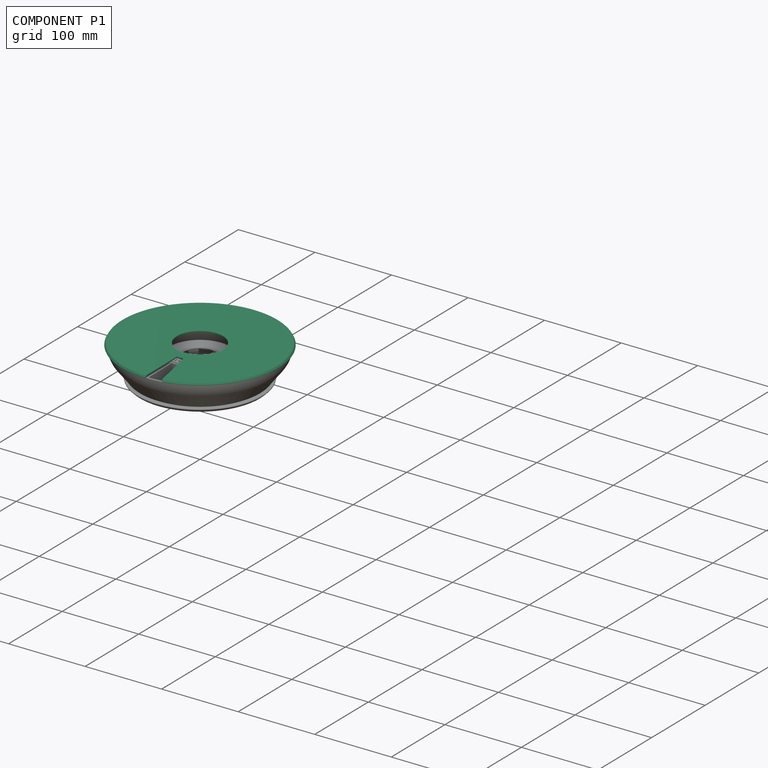
[diagram: component P1 — assembled]
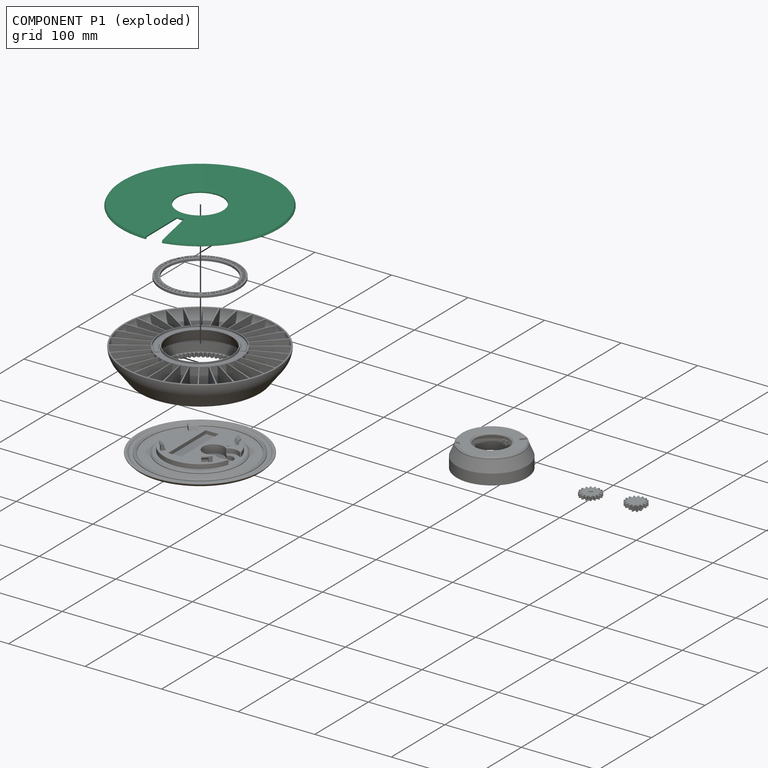
[diagram: component P1 — exploded]
COMPONENT P1 — recipe-attached ("cover", modeled in this document).
Held by: resting contact with P3 (derived edge); resting contact with P5 (derived edge).
Construction recipe (the document's own serialized feature program — sketch geometry with constraints, then the solid features built on it; lengths are millimeters unless a unit is written):

FEATURE [Sketcher::SketchObject] Sketch024
  ArcFitTolerance = 1e-06
  AttacherType = Attacher::AttachEngine3D
  AttachmentSupport = -> [XY_Plane020]
  FullyConstrained = true
  MakeInternals = false
  MapMode = 5
  sketch-geometry (5):
    g0: ArcOfCircle CenterX=0 CenterY=0 CenterZ=0 NormalX=0 NormalY=0 NormalZ=1 AngleXU=0 Radius=100 StartAngle=4.71239 EndAngle=10.7992
    g1: ArcOfCircle CenterX=0 CenterY=0 CenterZ=0 NormalX=0 NormalY=0 NormalZ=1 AngleXU=0 Radius=43 StartAngle=4.51604 EndAngle=4.71239
    g2: Circle CenterX=0 CenterY=0 CenterZ=0 NormalX=0 NormalY=0 NormalZ=1 AngleXU=0 Radius=30
    g3: LineSegment StartX=-7.9e-15 StartY=-43 StartZ=0 EndX=-1.84e-14 EndY=-100 EndZ=0
    g4: LineSegment StartX=-19.509 StartY=-98.0785 StartZ=0 EndX=-8.38887 EndY=-42.1738 EndZ=0
  constraints (14):
    c: Angle(g0) = 6.08684
    c: Coincident(g0,g-1)
    c: PointOnObject(g0,g-2)
    c: Coincident(g1,g0)
    c: PointOnObject(g1,g-2)
    c: Diameter(g2) = 60
    c: Coincident(g2,g0)
    c: Radius(g0) = 100
    c: Coincident(g3,g1)
    c: Coincident(g3,g0)
    c: Coincident(g4,g0)
    c: Coincident(g4,g1)
    c: PointOnObject(g0,g4)
    c: Radius(g1) = 43
FEATURE [PartDesign::Pad] Pad008
  Direction = (0,0,1)
  Length = 1.5
  Length2 = 10
  Profile = -> Sketch024
  ReferenceAxis = -> Sketch024 [N_Axis]
  Refine = true
  Suppressed = false
  Type = 0
  expr: Length = 1.5
FEATURE [Sketcher::SketchObject] Sketch025
  ArcFitTolerance = 1e-06
  ExternalGeometry = -> [Pad008]
  FullyConstrained = false
  MakeInternals = false
  MapMode = 5
  Placement = pos=(-1.84e-14,-100,0) rot=(0.57735,-0.57735,-0.57735;2.0944rad)
  sketch-geometry (10):
    g0: LineSegment StartX=0 StartY=0 StartZ=0 EndX=0.693802 EndY=-1.2017 EndZ=0
    g1: LineSegment StartX=1.21047 StartY=-1.5 StartZ=0 EndX=2.01139 EndY=-1.5 EndZ=0
    g2: LineSegment StartX=2.37172 StartY=-0.875891 StartZ=0 EndX=1.18232 EndY=1.18422 EndZ=0
    g3: LineSegment StartX=0.63537 StartY=1.5 StartZ=0 EndX=0 EndY=1.5 EndZ=0
    g4: ArcOfCircle CenterX=0.63537 CenterY=0.868442 CenterZ=0 NormalX=0 NormalY=0 NormalZ=1 AngleXU=0 Radius=0.631558 StartAngle=0.523599 EndAngle=1.5708
    g5: GeomPoint [constr] X=1 Y=1.5 Z=0
    g6: ArcOfCircle CenterX=2.01139 CenterY=-1.08393 CenterZ=0 NormalX=0 NormalY=0 NormalZ=1 AngleXU=0 Radius=0.416073 StartAngle=4.71239 EndAngle=6.80678
    g7: GeomPoint [constr] X=2.73205 Y=-1.5 Z=0
    g8: ArcOfCircle CenterX=1.21047 CenterY=-0.903401 CenterZ=0 NormalX=0 NormalY=0 NormalZ=1 AngleXU=0 Radius=0.596599 StartAngle=3.66519 EndAngle=4.71239
    g9: GeomPoint [constr] X=0.866025 Y=-1.5 Z=0
  constraints (20):
    c: Coincident(g-3,g0)
    c: Coincident(g3,g-3)
    c: Horizontal(g3)
    c: Parallel(g0,g2)
    c: Parallel(g1,g3)
    c: Angle(g-2,g0) = 0.523599
    c: Distance(g5,g1) = 3
    c: DistanceX(g3,g5) = 1
    c: PointOnObject(g5,g3)
    c: PointOnObject(g5,g2)
    c: Tangent(g3,g4) = -1.5708
    c: Tangent(g2,g4) = -1.5708
    c: PointOnObject(g7,g2)
    c: PointOnObject(g7,g1)
    c: Tangent(g2,g6) = -1.5708
    c: Tangent(g1,g6) = -1.5708
    c: PointOnObject(g9,g1)
    c: PointOnObject(g9,g0)
    c: Tangent(g1,g8) = -1.5708
    c: Tangent(g0,g8) = -1.5708
FEATURE [PartDesign::Revolution] Revolution007
  Angle = 360
  Angle2 = 348.75
  Axis = (0,0,1)
  Base = (0,0,0)
  BaseFeature = -> Pad008
  Profile = -> Sketch025
  ReferenceAxis = -> Pad008 [Edge3]
  Refine = true
  Reversed = true
  Suppressed = false
  Type = 4
FEATURE [Sketcher::SketchObject] Sketch030
  ArcFitTolerance = 1e-06
  AttachmentSupport = -> [Revolution007]
  ExternalGeometry = -> [Revolution007]
  FullyConstrained = false
  MakeInternals = false
  MapMode = 5
  Placement = pos=(0,0,0) rot=(1,0,0;3.14159rad)
  sketch-geometry (8):
    g0: ArcOfCircle CenterX=0 CenterY=0 CenterZ=0 NormalX=0 NormalY=0 NormalZ=1 AngleXU=0 Radius=40 StartAngle=1.5708 EndAngle=1.76715
    g1: ArcOfCircle CenterX=0 CenterY=0 CenterZ=0 NormalX=0 NormalY=0 NormalZ=1 AngleXU=0 Radius=30 StartAngle=1.5708 EndAngle=1.76715
    g2: LineSegment StartX=-5.85271 StartY=29.4236 StartZ=0 EndX=-7.80358 EndY=39.2314 EndZ=0
    g3: LineSegment StartX=2e-06 StartY=30 StartZ=0 EndX=4e-05 EndY=40 EndZ=0
    g4: ArcOfCircle CenterX=0 CenterY=0 CenterZ=0 NormalX=0 NormalY=0 NormalZ=1 AngleXU=0 Radius=40 StartAngle=4.71239 EndAngle=4.90874
    g5: ArcOfCircle CenterX=0 CenterY=0 CenterZ=0 NormalX=0 NormalY=0 NormalZ=1 AngleXU=0 Radius=35 StartAngle=4.71239 EndAngle=4.90874
    g6: LineSegment StartX=6.82818 StartY=-34.3275 StartZ=0 EndX=7.80362 EndY=-39.2314 EndZ=0
    g7: LineSegment StartX=6.86535e-07 StartY=-35 StartZ=0 EndX=7.84612e-07 EndY=-40 EndZ=0
  constraints (11):
    c: Coincident(g2,g1)
    c: Coincident(g2,g0)
    c: Coincident(g3,g1)
    c: Coincident(g3,g0)
    c: Coincident(g6,g5)
    c: Coincident(g6,g4)
    c: Coincident(g7,g5)
    c: Coincident(g7,g4)
    c: PointOnObject(g0,g7)
    c: Distance(g2,g2) = 10
    c: Distance(g6,g6) = 5
FEATURE [PartDesign::Pad] Pad011
  BaseFeature = -> Revolution007
  Direction = (0,0,-1)
  Length = 2.1
  Length2 = 10
  Profile = -> Sketch030
  ReferenceAxis = -> Sketch030 [N_Axis]
  Refine = true
  Suppressed = false
  Type = 0
  expr: Length = 2.1
FEATURE [PartDesign::Fillet] Fillet015
  Base = -> Pad011 [Face22,Face23]
  BaseFeature = -> Pad011
  Radius = 0.4
  Refine = true
  SupportTransform = false
  Suppressed = false
  UseAllEdges = false
  expr: Radius = 0.4
FEATURE [PartDesign::Fillet] Fillet016
  Base = -> Fillet015 [Face14,Edge29]
  BaseFeature = -> Fillet015
  Radius = 0.4
  Refine = true
  SupportTransform = false
  Suppressed = false
  UseAllEdges = false
  expr: Radius = 0.4
FEATURE [PartDesign::Body] Body023  label="cover"
  AllowCompound = false
  Group = -> [Sketch024,Pad008,Sketch025,Revolution007,Sketch030,Pad011,Fillet015,Fillet016]
  Origin = -> Origin040
  Placement = pos=(-3.7e-15,-3.6e-15,44) rot=(0,0,-1;6.08242rad)
  Tip = -> Fillet016
PROVENANCE & LICENSES
Assembly and component geometry: a FreeCAD (.FCStd) document from a public repository crawl; components, placements and joints were extracted with FreeCAD and each solid tessellated.
Construction recipes: the document's own serialized feature recipes (and, for linked parts, the recipes of companion documents from the same project).
License: mit.
Joints: native FreeCAD joints and A2plus constraints are mapped to standard mate types; edges marked 'derived from contact' connect touching components and are measured from the geometry, not modeled.
Verification: 7 of this assembly's 7 components carry a construction recipe (7 from this document itself); the rest are geometry-only. Every component's tessellation passed the extraction mesh gates (mesh-volume checksum against the B-rep where available, bounding-box inflation <= 2%).
Renders: orthographic iso camera (az 35 / el 25); the floor grid conveys scale (grid pitch printed in each image; no ruler). In the exploded view each component is displaced by its stored offset vector: the offsets alone carry the explosion direction (mate normal/axis signs are not orientation cues and do not encode it), and separation distances are assigned per mate-chain, not proportionally to assembly-order depth.
